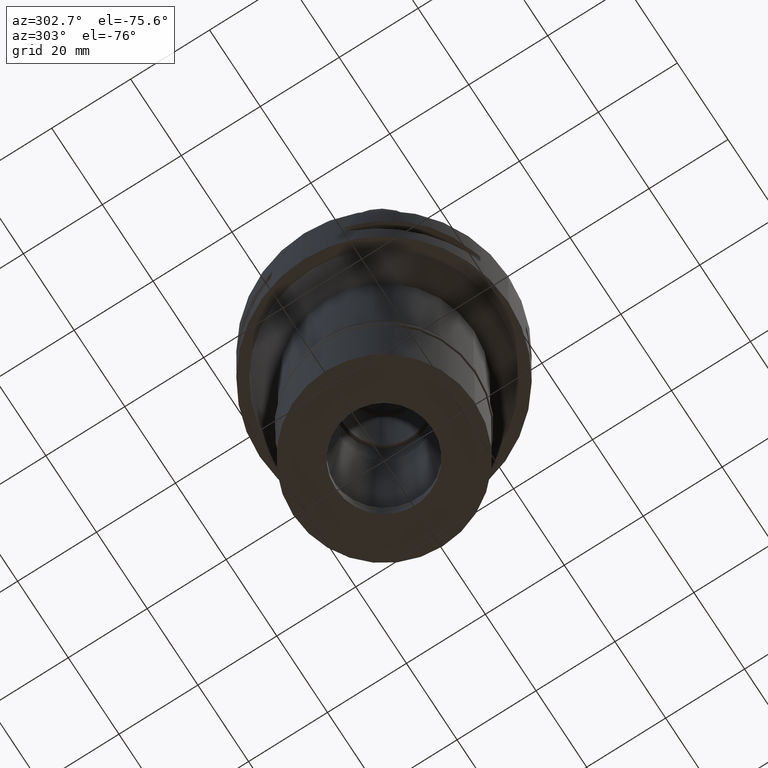
[diagram: clean part render]
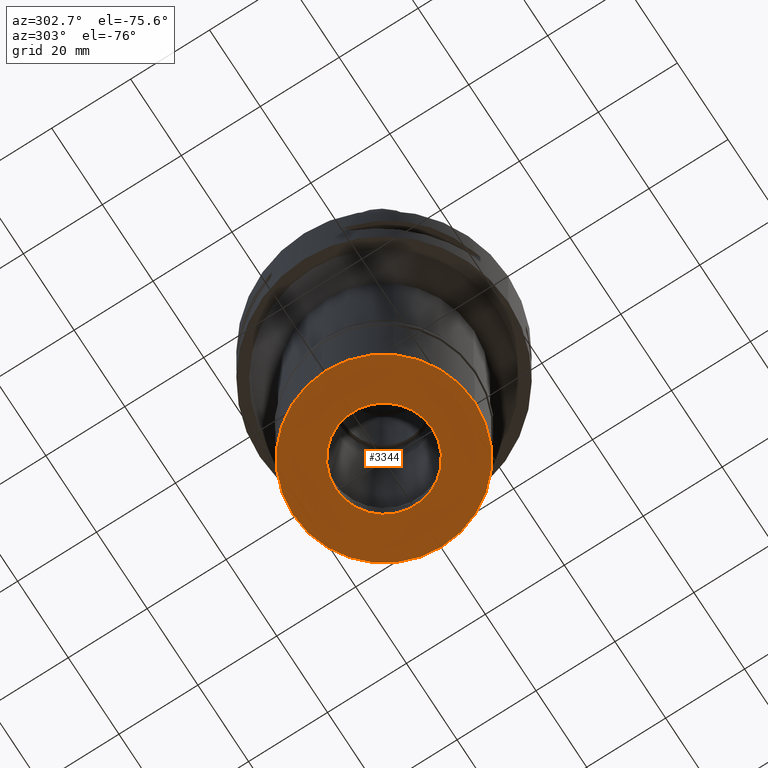
[diagram: same view with one face highlighted and labeled with its STEP entity id]
A machine part, auxiliary view. The second image highlights one B-rep face of the part: STEP entity #3344.
In plain terms, the highlighted planar face has unit normal (0, 0, -1).
Its self-contained STEP definition (entity closure, byte-faithful):
#55 = CARTESIAN_POINT ( 'NONE',  ( 0.0000000000000000000, 12.25000000000000000, -27.19999999999999929 ) ) ;
#358 = VERTEX_POINT ( 'NONE', #4376 ) ;
#547 = EDGE_LOOP ( 'NONE', ( #3135, #4457 ) ) ;
#721 = EDGE_LOOP ( 'NONE', ( #1801, #3832 ) ) ;
#775 = DIRECTION ( 'NONE',  ( 0.0000000000000000000, -1.000000000000000000, 0.0000000000000000000 ) ) ;
#805 = VERTEX_POINT ( 'NONE', #55 ) ;
#985 = CIRCLE ( 'NONE', #3169, 12.25000000000000000 ) ;
#988 = EDGE_CURVE ( 'NONE', #358, #1668, #4356, .T. ) ;
#1157 = DIRECTION ( 'NONE',  ( 0.0000000000000000000, 0.0000000000000000000, -1.000000000000000000 ) ) ;
#1178 = CARTESIAN_POINT ( 'NONE',  ( 0.0000000000000000000, 0.0000000000000000000, -27.19999999999999929 ) ) ;
#1365 = CARTESIAN_POINT ( 'NONE',  ( 0.0000000000000000000, 0.0000000000000000000, -27.19999999999999929 ) ) ;
#1424 = AXIS2_PLACEMENT_3D ( 'NONE', #1178, #3129, #4633 ) ;
#1668 = VERTEX_POINT ( 'NONE', #2206 ) ;
#1731 = CARTESIAN_POINT ( 'NONE',  ( 0.0000000000000000000, 0.0000000000000000000, -27.19999999999999929 ) ) ;
#1801 = ORIENTED_EDGE ( 'NONE', *, *, #988, .F. ) ;
#2206 = CARTESIAN_POINT ( 'NONE',  ( 0.0000000000000000000, -23.00000000000000000, -27.19999999999999929 ) ) ;
#2221 = AXIS2_PLACEMENT_3D ( 'NONE', #3054, #4212, #775 ) ;
#2385 = FACE_BOUND ( 'NONE', #547, .T. ) ;
#2388 = CARTESIAN_POINT ( 'NONE',  ( 0.0000000000000000000, -12.25000000000000000, -27.19999999999999929 ) ) ;
#2721 = FACE_OUTER_BOUND ( 'NONE', #721, .T. ) ;
#2734 = AXIS2_PLACEMENT_3D ( 'NONE', #1731, #3269, #4776 ) ;
#2754 = EDGE_CURVE ( 'NONE', #805, #4416, #985, .T. ) ;
#2918 = DIRECTION ( 'NONE',  ( 0.0000000000000000000, 1.000000000000000000, 0.0000000000000000000 ) ) ;
#3054 = CARTESIAN_POINT ( 'NONE',  ( 0.0000000000000000000, 0.0000000000000000000, -27.19999999999999929 ) ) ;
#3129 = DIRECTION ( 'NONE',  ( 0.0000000000000000000, 0.0000000000000000000, -1.000000000000000000 ) ) ;
#3135 = ORIENTED_EDGE ( 'NONE', *, *, #2754, .F. ) ;
#3169 = AXIS2_PLACEMENT_3D ( 'NONE', #4538, #1157, #4284 ) ;
#3269 = DIRECTION ( 'NONE',  ( 0.0000000000000000000, 0.0000000000000000000, 1.000000000000000000 ) ) ;
#3344 = ADVANCED_FACE ( 'NONE', ( #2721, #2385 ), #4653, .T. ) ;
#3602 = DIRECTION ( 'NONE',  ( 0.0000000000000000000, 0.0000000000000000000, 1.000000000000000000 ) ) ;
#3832 = ORIENTED_EDGE ( 'NONE', *, *, #4632, .F. ) ;
#4053 = CIRCLE ( 'NONE', #2734, 23.00000000000000000 ) ;
#4120 = AXIS2_PLACEMENT_3D ( 'NONE', #1365, #3602, #2918 ) ;
#4212 = DIRECTION ( 'NONE',  ( 0.0000000000000000000, 0.0000000000000000000, -1.000000000000000000 ) ) ;
#4284 = DIRECTION ( 'NONE',  ( 0.0000000000000000000, 1.000000000000000000, 0.0000000000000000000 ) ) ;
#4356 = CIRCLE ( 'NONE', #4120, 23.00000000000000000 ) ;
#4376 = CARTESIAN_POINT ( 'NONE',  ( 0.0000000000000000000, 23.00000000000000000, -27.19999999999999929 ) ) ;
#4380 = EDGE_CURVE ( 'NONE', #4416, #805, #4453, .T. ) ;
#4416 = VERTEX_POINT ( 'NONE', #2388 ) ;
#4453 = CIRCLE ( 'NONE', #1424, 12.25000000000000000 ) ;
#4457 = ORIENTED_EDGE ( 'NONE', *, *, #4380, .F. ) ;
#4538 = CARTESIAN_POINT ( 'NONE',  ( 0.0000000000000000000, 0.0000000000000000000, -27.19999999999999929 ) ) ;
#4632 = EDGE_CURVE ( 'NONE', #1668, #358, #4053, .T. ) ;
#4633 = DIRECTION ( 'NONE',  ( 0.0000000000000000000, -1.000000000000000000, 0.0000000000000000000 ) ) ;
#4653 = PLANE ( 'NONE',  #2221 ) ;
#4776 = DIRECTION ( 'NONE',  ( 0.0000000000000000000, -1.000000000000000000, 0.0000000000000000000 ) ) ;